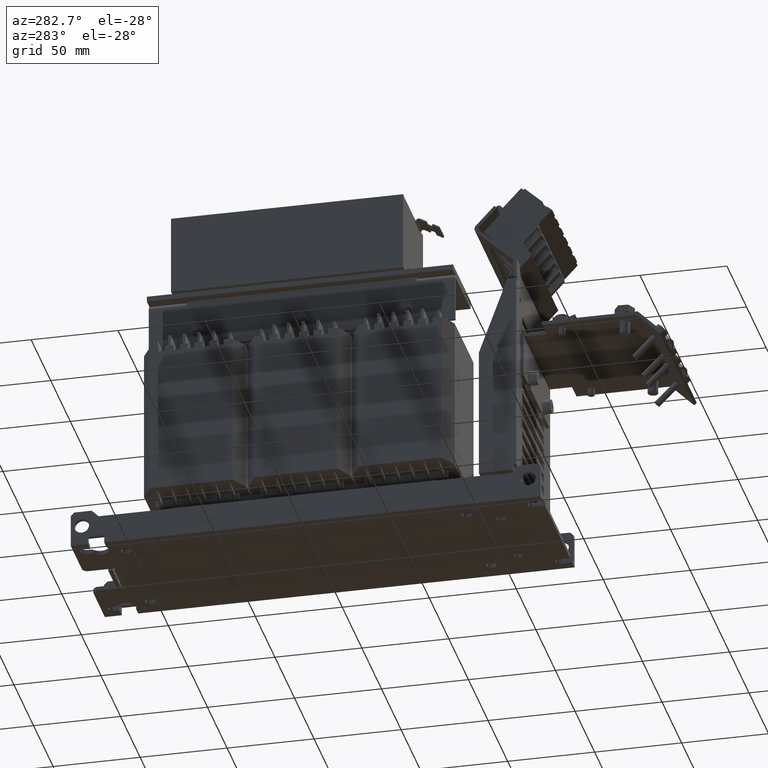
[diagram: clean part render]
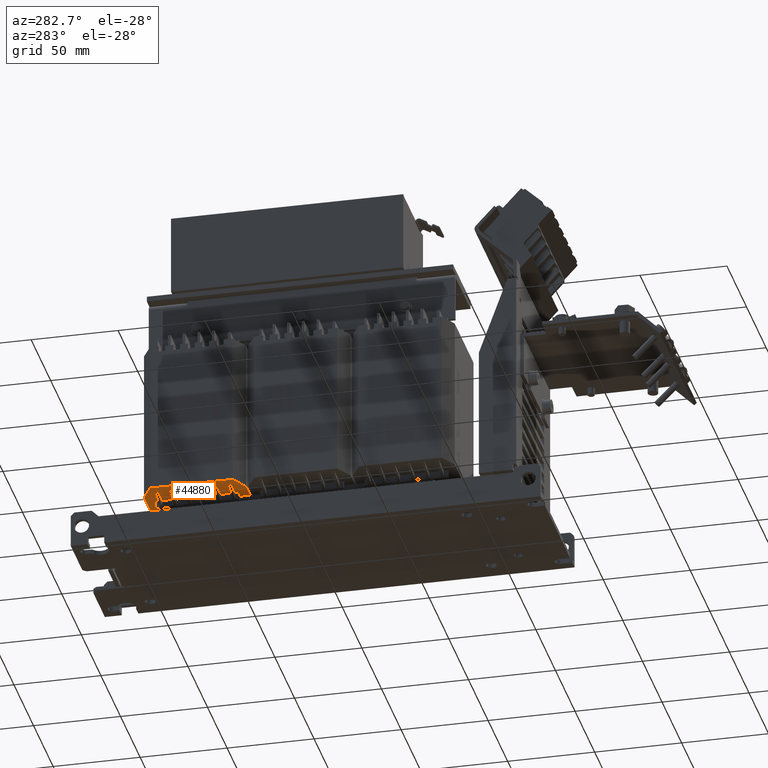
[diagram: same view with one face highlighted and labeled with its STEP entity id]
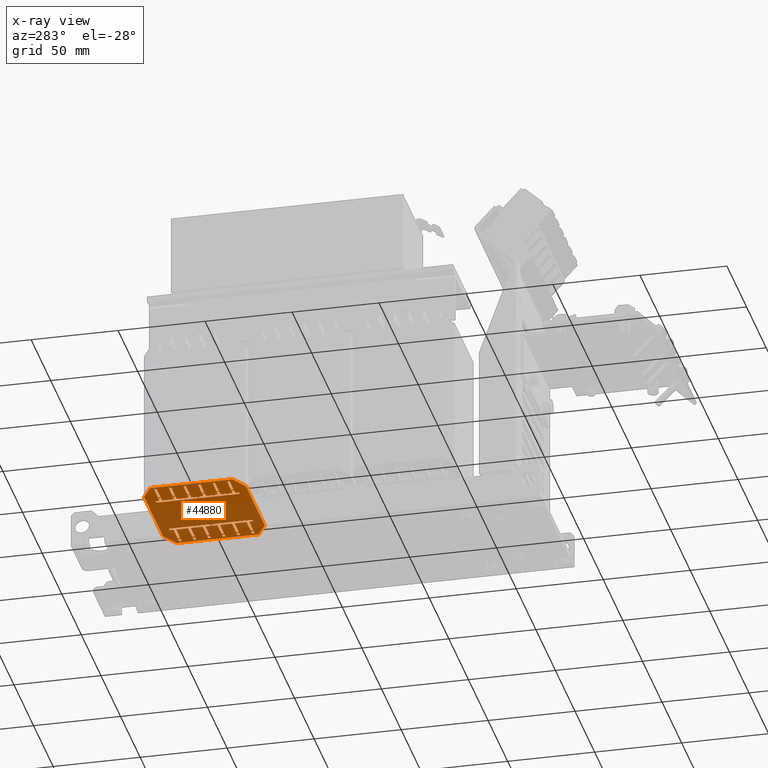
[diagram: x-ray of the same camera — body ghosted, the highlighted face saturated]
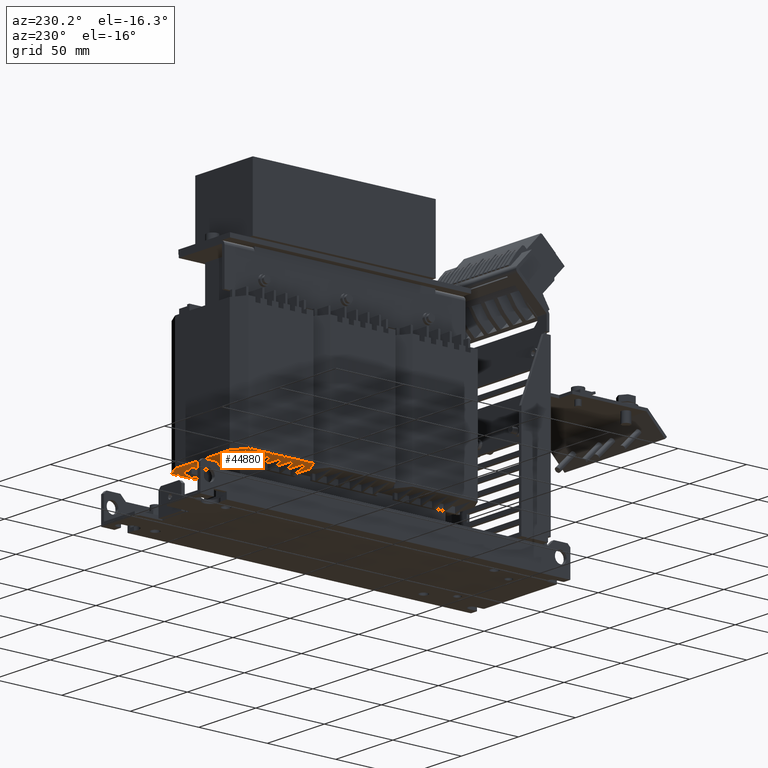
[diagram: same view with one face highlighted and labeled with its STEP entity id]
A machine part, auxiliary view. The second image highlights one B-rep face of the part: STEP entity #44880.
The next image is the same camera in x-ray: the body ghosted, the highlighted face saturated — about 58% of this face is hidden behind the body in this view.
A second angle (auxiliary view) of the same face is appended — the face is thin or edge-on in the first view.
In plain terms, the highlighted planar face has unit normal (-0, -0, 1).
Its self-contained STEP definition (entity closure, byte-faithful):
#35367=DIRECTION('',(8.660254037844E-1,-5.E-1,6.472173081882E-12));
#35368=VECTOR('',#35367,1.122324495309E1);
#35369=CARTESIAN_POINT('',(-3.369999999992E1,4.431162247642E1,3.425E1));
#35370=LINE('',#35369,#35368);
#35371=DIRECTION('',(1.E0,0.E0,-2.590120795558E-12));
#35372=VECTOR('',#35371,4.796076951546E1);
#35373=CARTESIAN_POINT('',(-2.398038475765E1,3.869999999988E1,
3.425000000007E1));
#35374=LINE('',#35373,#35372);
#35375=DIRECTION('',(8.660254037844E-1,5.E-1,4.717855209448E-12));
#35376=VECTOR('',#35375,1.122324495309E1);
#35377=CARTESIAN_POINT('',(2.398038475780E1,3.869999999988E1,3.424999999995E1));
#35378=LINE('',#35377,#35376);
#35379=DIRECTION('',(0.E0,1.E0,1.364791423350E-14));
#35380=VECTOR('',#35379,4.737675504691E1);
#35381=CARTESIAN_POINT('',(3.370000000008E1,4.431162247643E1,3.425E1));
#35382=LINE('',#35381,#35380);
#35383=DIRECTION('',(-8.660254037844E-1,5.E-1,-1.012958713784E-14));
#35384=VECTOR('',#35383,1.122324495309E1);
#35385=CARTESIAN_POINT('',(3.370000000008E1,9.168837752334E1,3.425E1));
#35386=LINE('',#35385,#35384);
#35387=DIRECTION('',(-1.E0,0.E0,-2.029666241443E-14));
#35388=VECTOR('',#35387,4.796076951546E1);
#35389=CARTESIAN_POINT('',(2.398038475780E1,9.729999999988E1,3.425E1));
#35390=LINE('',#35389,#35388);
#35391=DIRECTION('',(-8.660254037844E-1,-5.E-1,-2.405776945237E-14));
#35392=VECTOR('',#35391,1.122324495309E1);
#35393=CARTESIAN_POINT('',(-2.398038475765E1,9.729999999988E1,3.425E1));
#35394=LINE('',#35393,#35392);
#35395=DIRECTION('',(0.E0,-1.E0,-1.364791423350E-14));
#35396=VECTOR('',#35395,4.737675504691E1);
#35397=CARTESIAN_POINT('',(-3.369999999992E1,9.168837752334E1,3.425E1));
#35398=LINE('',#35397,#35396);
#35531=DIRECTION('',(1.681617807966E-13,1.E0,4.736951571734E-14));
#35532=VECTOR('',#35531,1.5E0);
#35533=CARTESIAN_POINT('',(3.189999999994E1,5.464999999988E1,3.425000000005E1));
#35534=LINE('',#35533,#35532);
#35535=DIRECTION('',(1.E0,0.E0,-1.359101956286E-12));
#35536=VECTOR('',#35535,1.409999999987E1);
#35537=CARTESIAN_POINT('',(1.780000000008E1,5.464999999988E1,3.425000000007E1));
#35538=LINE('',#35537,#35536);
#35539=DIRECTION('',(2.887314091519E-10,1.E0,6.105930575965E-11));
#35540=VECTOR('',#35539,1.5E0);
#35541=CARTESIAN_POINT('',(3.189999999951E1,4.624999999988E1,3.424999999996E1));
#35542=LINE('',#35541,#35540);
#35543=DIRECTION('',(1.E0,0.E0,1.024995691201E-12));
#35544=VECTOR('',#35543,1.409999999943E1);
#35545=CARTESIAN_POINT('',(1.780000000008E1,4.624999999988E1,3.424999999995E1));
#35546=LINE('',#35545,#35544);
#35547=DIRECTION('',(1.E0,0.E0,-1.462928543737E-11));
#35548=VECTOR('',#35547,1.8E0);
#35549=CARTESIAN_POINT('',(1.600000000008E1,4.409999999988E1,3.425E1));
#35550=LINE('',#35549,#35548);
#35551=DIRECTION('',(0.E0,1.E0,1.352706881886E-14));
#35552=VECTOR('',#35551,4.78E1);
#35553=CARTESIAN_POINT('',(1.600000000008E1,4.409999999988E1,3.425E1));
#35554=LINE('',#35553,#35552);
#35555=DIRECTION('',(1.E0,1.578983857245E-14,1.973729821556E-14));
#35556=VECTOR('',#35555,1.8E0);
#35557=CARTESIAN_POINT('',(1.600000000007E1,9.189999999988E1,3.425E1));
#35558=LINE('',#35557,#35556);
#35559=DIRECTION('',(0.E0,1.E0,1.321939973507E-14));
#35560=VECTOR('',#35559,2.15E0);
#35561=CARTESIAN_POINT('',(1.780000000007E1,8.974999999988E1,3.425E1));
#35562=LINE('',#35561,#35560);
#35563=DIRECTION('',(-1.E0,0.E0,-2.015724073133E-14));
#35564=VECTOR('',#35563,1.409999999962E1);
#35565=CARTESIAN_POINT('',(3.189999999969E1,8.974999999988E1,3.425E1));
#35566=LINE('',#35565,#35564);
#35567=DIRECTION('',(-1.668993832027E-10,1.E0,-3.527134140313E-11));
#35568=VECTOR('',#35567,1.5E0);
#35569=CARTESIAN_POINT('',(3.189999999994E1,8.824999999988E1,3.425000000005E1));
#35570=LINE('',#35569,#35568);
#35571=DIRECTION('',(1.E0,0.E0,-1.358598025268E-12));
#35572=VECTOR('',#35571,1.409999999987E1);
#35573=CARTESIAN_POINT('',(1.780000000007E1,8.824999999988E1,3.425000000007E1));
#35574=LINE('',#35573,#35572);
#35575=DIRECTION('',(1.515824502955E-13,1.E0,4.736951571734E-14));
#35576=VECTOR('',#35575,1.5E0);
#35577=CARTESIAN_POINT('',(3.189999999994E1,7.984999999988E1,3.425000000005E1));
#35578=LINE('',#35577,#35576);
#35579=DIRECTION('',(1.E0,0.E0,-1.358598025268E-12));
#35580=VECTOR('',#35579,1.409999999987E1);
#35581=CARTESIAN_POINT('',(1.780000000007E1,7.984999999988E1,3.425000000007E1));
#35582=LINE('',#35581,#35580);
#35583=DIRECTION('',(1.515824502955E-13,1.E0,4.736951571734E-14));
#35584=VECTOR('',#35583,1.5E0);
#35585=CARTESIAN_POINT('',(3.189999999994E1,7.144999999988E1,3.425000000005E1));
#35586=LINE('',#35585,#35584);
#35587=DIRECTION('',(1.E0,0.E0,-1.358598025268E-12));
#35588=VECTOR('',#35587,1.409999999987E1);
#35589=CARTESIAN_POINT('',(1.780000000007E1,7.144999999988E1,3.425000000007E1));
#35590=LINE('',#35589,#35588);
#35591=DIRECTION('',(1.515824502955E-13,1.E0,4.736951571734E-14));
#35592=VECTOR('',#35591,1.5E0);
#35593=CARTESIAN_POINT('',(3.189999999994E1,6.304999999988E1,3.425000000005E1));
#35594=LINE('',#35593,#35592);
#35595=DIRECTION('',(1.E0,0.E0,-1.358598025268E-12));
#35596=VECTOR('',#35595,1.409999999987E1);
#35597=CARTESIAN_POINT('',(1.780000000007E1,6.304999999988E1,3.425000000007E1));
#35598=LINE('',#35597,#35596);
#35659=DIRECTION('',(-1.563194018672E-13,1.E0,4.263256414561E-14));
#35660=VECTOR('',#35659,1.5E0);
#35661=CARTESIAN_POINT('',(-3.189999999979E1,7.144999999988E1,
3.425000000005E1));
#35662=LINE('',#35661,#35660);
#35663=DIRECTION('',(-1.E0,0.E0,-1.401432161821E-12));
#35664=VECTOR('',#35663,1.409999999987E1);
#35665=CARTESIAN_POINT('',(-1.779999999993E1,7.294999999988E1,
3.425000000007E1));
#35666=LINE('',#35665,#35664);
#35667=DIRECTION('',(-1.610563534389E-13,1.E0,4.263256414560E-14));
#35668=VECTOR('',#35667,1.5E0);
#35669=CARTESIAN_POINT('',(-3.189999999979E1,7.984999999988E1,
3.425000000005E1));
#35670=LINE('',#35669,#35668);
#35671=DIRECTION('',(-1.E0,0.E0,-1.401432161821E-12));
#35672=VECTOR('',#35671,1.409999999987E1);
#35673=CARTESIAN_POINT('',(-1.779999999993E1,8.134999999988E1,
3.425000000007E1));
#35674=LINE('',#35673,#35672);
#35675=DIRECTION('',(1.670485971772E-10,1.E0,-3.530923701570E-11));
#35676=VECTOR('',#35675,1.5E0);
#35677=CARTESIAN_POINT('',(-3.189999999979E1,8.824999999988E1,
3.425000000005E1));
#35678=LINE('',#35677,#35676);
#35679=DIRECTION('',(-1.E0,0.E0,-2.015724073133E-14));
#35680=VECTOR('',#35679,1.409999999962E1);
#35681=CARTESIAN_POINT('',(-1.779999999993E1,8.974999999988E1,3.425E1));
#35682=LINE('',#35681,#35680);
#35683=DIRECTION('',(0.E0,-1.E0,0.E0));
#35684=VECTOR('',#35683,2.342522711888E0);
#35685=CARTESIAN_POINT('',(-1.779999999993E1,9.209252271176E1,3.425E1));
#35686=LINE('',#35685,#35684);
#35687=DIRECTION('',(-1.E0,-1.578983857245E-14,-2.763221750178E-14));
#35688=VECTOR('',#35687,1.8E0);
#35689=CARTESIAN_POINT('',(-1.599999999993E1,9.209252271176E1,3.425E1));
#35690=LINE('',#35689,#35688);
#35691=DIRECTION('',(0.E0,-1.E0,-1.362085758283E-14));
#35692=VECTOR('',#35691,4.799252271189E1);
#35693=CARTESIAN_POINT('',(-1.599999999993E1,9.209252271176E1,3.425E1));
#35694=LINE('',#35693,#35692);
#35695=DIRECTION('',(-1.E0,0.E0,2.010835942201E-11));
#35696=VECTOR('',#35695,1.8E0);
#35697=CARTESIAN_POINT('',(-1.599999999992E1,4.409999999988E1,3.425E1));
#35698=LINE('',#35697,#35696);
#35699=DIRECTION('',(-1.515824502955E-13,1.E0,4.263256414560E-14));
#35700=VECTOR('',#35699,1.5E0);
#35701=CARTESIAN_POINT('',(-3.189999999979E1,4.624999999988E1,
3.425000000005E1));
#35702=LINE('',#35701,#35700);
#35703=DIRECTION('',(-1.E0,0.E0,-1.401432161821E-12));
#35704=VECTOR('',#35703,1.409999999987E1);
#35705=CARTESIAN_POINT('',(-1.779999999992E1,4.774999999988E1,
3.425000000007E1));
#35706=LINE('',#35705,#35704);
#35707=DIRECTION('',(-1.610563534389E-13,1.E0,4.263256414560E-14));
#35708=VECTOR('',#35707,1.5E0);
#35709=CARTESIAN_POINT('',(-3.189999999979E1,5.464999999988E1,
3.425000000005E1));
#35710=LINE('',#35709,#35708);
#35711=DIRECTION('',(-1.E0,0.E0,-1.401432161821E-12));
#35712=VECTOR('',#35711,1.409999999987E1);
#35713=CARTESIAN_POINT('',(-1.779999999992E1,5.614999999988E1,
3.425000000007E1));
#35714=LINE('',#35713,#35712);
#35715=DIRECTION('',(-1.681617807966E-13,1.E0,4.263256414561E-14));
#35716=VECTOR('',#35715,1.5E0);
#35717=CARTESIAN_POINT('',(-3.189999999979E1,6.304999999988E1,
3.425000000005E1));
#35718=LINE('',#35717,#35716);
#35719=DIRECTION('',(-1.E0,0.E0,-1.401432161821E-12));
#35720=VECTOR('',#35719,1.409999999987E1);
#35721=CARTESIAN_POINT('',(-1.779999999993E1,6.454999999988E1,
3.425000000007E1));
#35722=LINE('',#35721,#35720);
#35923=DIRECTION('',(-1.E0,0.E0,-1.399920368766E-12));
#35924=VECTOR('',#35923,1.409999999987E1);
#35925=CARTESIAN_POINT('',(-1.779999999993E1,8.824999999988E1,
3.425000000007E1));
#35926=LINE('',#35925,#35924);
#35931=DIRECTION('',(0.E0,1.E0,1.685473466222E-11));
#35932=VECTOR('',#35931,2.15E0);
#35933=CARTESIAN_POINT('',(-1.779999999992E1,4.409999999988E1,
3.425000000004E1));
#35934=LINE('',#35933,#35932);
#35939=DIRECTION('',(0.E0,1.E0,0.E0));
#35940=VECTOR('',#35939,6.9E0);
#35941=CARTESIAN_POINT('',(-1.779999999992E1,4.774999999988E1,
3.425000000007E1));
#35942=LINE('',#35941,#35940);
#35951=DIRECTION('',(0.E0,1.E0,0.E0));
#35952=VECTOR('',#35951,6.9E0);
#35953=CARTESIAN_POINT('',(-1.779999999992E1,5.614999999988E1,
3.425000000007E1));
#35954=LINE('',#35953,#35952);
#35963=DIRECTION('',(0.E0,1.E0,0.E0));
#35964=VECTOR('',#35963,6.9E0);
#35965=CARTESIAN_POINT('',(-1.779999999993E1,6.454999999988E1,
3.425000000007E1));
#35966=LINE('',#35965,#35964);
#35975=DIRECTION('',(0.E0,1.E0,0.E0));
#35976=VECTOR('',#35975,6.9E0);
#35977=CARTESIAN_POINT('',(-1.779999999993E1,7.294999999988E1,
3.425000000007E1));
#35978=LINE('',#35977,#35976);
#35987=DIRECTION('',(0.E0,1.E0,0.E0));
#35988=VECTOR('',#35987,6.9E0);
#35989=CARTESIAN_POINT('',(-1.779999999993E1,8.134999999988E1,
3.425000000007E1));
#35990=LINE('',#35989,#35988);
#36667=DIRECTION('',(0.E0,-1.E0,1.225768840434E-11));
#36668=VECTOR('',#36667,2.15E0);
#36669=CARTESIAN_POINT('',(1.780000000008E1,4.624999999988E1,3.424999999995E1));
#36670=LINE('',#36669,#36668);
#36679=DIRECTION('',(0.E0,1.E0,0.E0));
#36680=VECTOR('',#36679,6.9E0);
#36681=CARTESIAN_POINT('',(1.780000000008E1,4.774999999988E1,3.425000000007E1));
#36682=LINE('',#36681,#36680);
#36691=DIRECTION('',(0.E0,1.E0,0.E0));
#36692=VECTOR('',#36691,6.9E0);
#36693=CARTESIAN_POINT('',(1.780000000008E1,5.614999999988E1,3.425000000007E1));
#36694=LINE('',#36693,#36692);
#36703=DIRECTION('',(0.E0,1.E0,0.E0));
#36704=VECTOR('',#36703,6.9E0);
#36705=CARTESIAN_POINT('',(1.780000000007E1,6.454999999988E1,3.425000000007E1));
#36706=LINE('',#36705,#36704);
#36715=DIRECTION('',(0.E0,1.E0,0.E0));
#36716=VECTOR('',#36715,6.9E0);
#36717=CARTESIAN_POINT('',(1.780000000007E1,7.294999999988E1,3.425000000007E1));
#36718=LINE('',#36717,#36716);
#36727=DIRECTION('',(0.E0,1.E0,0.E0));
#36728=VECTOR('',#36727,6.9E0);
#36729=CARTESIAN_POINT('',(1.780000000007E1,8.134999999988E1,3.425000000007E1));
#36730=LINE('',#36729,#36728);
#36911=DIRECTION('',(-1.E0,0.E0,1.359605887304E-12));
#36912=VECTOR('',#36911,1.409999999987E1);
#36913=CARTESIAN_POINT('',(3.189999999994E1,4.774999999988E1,3.425000000005E1));
#36914=LINE('',#36913,#36912);
#36915=DIRECTION('',(-1.E0,0.E0,1.359605887304E-12));
#36916=VECTOR('',#36915,1.409999999987E1);
#36917=CARTESIAN_POINT('',(3.189999999994E1,5.614999999988E1,3.425000000005E1));
#36918=LINE('',#36917,#36916);
#36919=DIRECTION('',(-1.E0,0.E0,1.359605887304E-12));
#36920=VECTOR('',#36919,1.409999999987E1);
#36921=CARTESIAN_POINT('',(3.189999999994E1,6.454999999988E1,3.425000000005E1));
#36922=LINE('',#36921,#36920);
#36923=DIRECTION('',(-1.E0,0.E0,1.359605887304E-12));
#36924=VECTOR('',#36923,1.409999999987E1);
#36925=CARTESIAN_POINT('',(3.189999999994E1,7.294999999988E1,3.425000000005E1));
#36926=LINE('',#36925,#36924);
#36927=DIRECTION('',(-1.E0,0.E0,1.359605887304E-12));
#36928=VECTOR('',#36927,1.409999999987E1);
#36929=CARTESIAN_POINT('',(3.189999999994E1,8.134999999988E1,3.425000000005E1));
#36930=LINE('',#36929,#36928);
#37067=DIRECTION('',(-1.E0,0.E0,-1.399920368766E-12));
#37068=VECTOR('',#37067,1.409999999987E1);
#37069=CARTESIAN_POINT('',(-1.779999999992E1,4.624999999988E1,
3.425000000007E1));
#37070=LINE('',#37069,#37068);
#37071=DIRECTION('',(-1.E0,0.E0,-1.399920368766E-12));
#37072=VECTOR('',#37071,1.409999999987E1);
#37073=CARTESIAN_POINT('',(-1.779999999992E1,5.464999999988E1,
3.425000000007E1));
#37074=LINE('',#37073,#37072);
#37075=DIRECTION('',(-1.E0,0.E0,-1.399920368766E-12));
#37076=VECTOR('',#37075,1.409999999987E1);
#37077=CARTESIAN_POINT('',(-1.779999999993E1,6.304999999988E1,
3.425000000007E1));
#37078=LINE('',#37077,#37076);
#37079=DIRECTION('',(-1.E0,0.E0,-1.399920368766E-12));
#37080=VECTOR('',#37079,1.409999999987E1);
#37081=CARTESIAN_POINT('',(-1.779999999993E1,7.144999999988E1,
3.425000000007E1));
#37082=LINE('',#37081,#37080);
#37083=DIRECTION('',(-1.E0,0.E0,-1.399920368766E-12));
#37084=VECTOR('',#37083,1.409999999987E1);
#37085=CARTESIAN_POINT('',(-1.779999999993E1,7.984999999988E1,
3.425000000007E1));
#37086=LINE('',#37085,#37084);
#39329=CARTESIAN_POINT('',(-2.398038475765E1,9.729999999988E1,3.425E1));
#39330=CARTESIAN_POINT('',(-3.369999999992E1,9.168837752334E1,3.425E1));
#39331=VERTEX_POINT('',#39329);
#39332=VERTEX_POINT('',#39330);
#39333=CARTESIAN_POINT('',(-3.369999999992E1,4.431162247642E1,3.425E1));
#39334=VERTEX_POINT('',#39333);
#39335=CARTESIAN_POINT('',(3.370000000008E1,4.431162247643E1,3.425E1));
#39336=CARTESIAN_POINT('',(3.370000000008E1,9.168837752334E1,3.425E1));
#39337=VERTEX_POINT('',#39335);
#39338=VERTEX_POINT('',#39336);
#39339=CARTESIAN_POINT('',(2.398038475780E1,9.729999999988E1,3.425E1));
#39340=VERTEX_POINT('',#39339);
#39385=CARTESIAN_POINT('',(1.600000000008E1,4.409999999988E1,3.425E1));
#39386=CARTESIAN_POINT('',(1.600000000007E1,9.189999999988E1,3.425E1));
#39387=VERTEX_POINT('',#39385);
#39388=VERTEX_POINT('',#39386);
#39391=CARTESIAN_POINT('',(1.780000000007E1,9.189999999988E1,3.425E1));
#39392=VERTEX_POINT('',#39391);
#39409=CARTESIAN_POINT('',(-1.599999999993E1,9.209252271176E1,3.425E1));
#39410=CARTESIAN_POINT('',(-1.599999999992E1,4.409999999988E1,3.425E1));
#39411=VERTEX_POINT('',#39409);
#39412=VERTEX_POINT('',#39410);
#39421=CARTESIAN_POINT('',(-1.779999999993E1,9.209252271176E1,3.425E1));
#39422=VERTEX_POINT('',#39421);
#39425=CARTESIAN_POINT('',(3.189999999969E1,8.974999999988E1,3.425E1));
#39426=CARTESIAN_POINT('',(1.780000000007E1,8.974999999988E1,3.425E1));
#39427=VERTEX_POINT('',#39425);
#39428=VERTEX_POINT('',#39426);
#39429=CARTESIAN_POINT('',(-1.779999999993E1,8.974999999988E1,3.425E1));
#39430=CARTESIAN_POINT('',(-3.189999999954E1,8.974999999988E1,3.425E1));
#39431=VERTEX_POINT('',#39429);
#39432=VERTEX_POINT('',#39430);
#39489=CARTESIAN_POINT('',(1.780000000008E1,4.774999999988E1,3.425000000007E1));
#39490=CARTESIAN_POINT('',(1.780000000008E1,5.464999999988E1,3.425000000007E1));
#39491=VERTEX_POINT('',#39489);
#39492=VERTEX_POINT('',#39490);
#39493=CARTESIAN_POINT('',(1.780000000008E1,5.614999999988E1,3.425000000007E1));
#39494=CARTESIAN_POINT('',(1.780000000007E1,6.304999999988E1,3.425000000007E1));
#39495=VERTEX_POINT('',#39493);
#39496=VERTEX_POINT('',#39494);
#39497=CARTESIAN_POINT('',(1.780000000007E1,6.454999999988E1,3.425000000007E1));
#39498=CARTESIAN_POINT('',(1.780000000007E1,7.144999999988E1,3.425000000007E1));
#39499=VERTEX_POINT('',#39497);
#39500=VERTEX_POINT('',#39498);
#39501=CARTESIAN_POINT('',(1.780000000007E1,7.294999999988E1,3.425000000007E1));
#39502=CARTESIAN_POINT('',(1.780000000007E1,7.984999999988E1,3.425000000007E1));
#39503=VERTEX_POINT('',#39501);
#39504=VERTEX_POINT('',#39502);
#39505=CARTESIAN_POINT('',(1.780000000007E1,8.134999999988E1,3.425000000007E1));
#39506=CARTESIAN_POINT('',(1.780000000007E1,8.824999999988E1,3.425000000007E1));
#39507=VERTEX_POINT('',#39505);
#39508=VERTEX_POINT('',#39506);
#39597=CARTESIAN_POINT('',(3.189999999994E1,4.774999999988E1,3.425000000005E1));
#39599=VERTEX_POINT('',#39597);
#39601=CARTESIAN_POINT('',(3.189999999994E1,5.464999999988E1,3.425000000005E1));
#39603=VERTEX_POINT('',#39601);
#39605=CARTESIAN_POINT('',(3.189999999994E1,5.614999999988E1,3.425000000005E1));
#39607=VERTEX_POINT('',#39605);
#39609=CARTESIAN_POINT('',(3.189999999994E1,6.304999999988E1,3.425000000005E1));
#39611=VERTEX_POINT('',#39609);
#39613=CARTESIAN_POINT('',(3.189999999994E1,6.454999999988E1,3.425000000005E1));
#39615=VERTEX_POINT('',#39613);
#39617=CARTESIAN_POINT('',(3.189999999994E1,7.144999999988E1,3.425000000005E1));
#39619=VERTEX_POINT('',#39617);
#39621=CARTESIAN_POINT('',(3.189999999994E1,7.294999999988E1,3.425000000005E1));
#39623=VERTEX_POINT('',#39621);
#39625=CARTESIAN_POINT('',(3.189999999994E1,7.984999999988E1,3.425000000005E1));
#39627=VERTEX_POINT('',#39625);
#39629=CARTESIAN_POINT('',(3.189999999994E1,8.134999999988E1,3.425000000005E1));
#39631=VERTEX_POINT('',#39629);
#39633=CARTESIAN_POINT('',(3.189999999994E1,8.824999999988E1,3.425000000005E1));
#39635=VERTEX_POINT('',#39633);
#39641=CARTESIAN_POINT('',(3.189999999951E1,4.624999999988E1,3.424999999996E1));
#39643=VERTEX_POINT('',#39641);
#39659=CARTESIAN_POINT('',(1.780000000008E1,4.624999999988E1,3.424999999995E1));
#39660=VERTEX_POINT('',#39659);
#39667=CARTESIAN_POINT('',(1.780000000008E1,4.409999999988E1,3.424999999997E1));
#39668=VERTEX_POINT('',#39667);
#39669=CARTESIAN_POINT('',(2.398038475780E1,3.869999999988E1,3.424999999995E1));
#39670=VERTEX_POINT('',#39669);
#39677=CARTESIAN_POINT('',(-1.779999999993E1,8.134999999988E1,
3.425000000007E1));
#39678=CARTESIAN_POINT('',(-1.779999999993E1,8.824999999988E1,
3.425000000007E1));
#39679=VERTEX_POINT('',#39677);
#39680=VERTEX_POINT('',#39678);
#39681=CARTESIAN_POINT('',(-1.779999999993E1,7.294999999988E1,
3.425000000007E1));
#39682=CARTESIAN_POINT('',(-1.779999999993E1,7.984999999988E1,
3.425000000007E1));
#39683=VERTEX_POINT('',#39681);
#39684=VERTEX_POINT('',#39682);
#39685=CARTESIAN_POINT('',(-1.779999999993E1,6.454999999988E1,
3.425000000007E1));
#39686=CARTESIAN_POINT('',(-1.779999999993E1,7.144999999988E1,
3.425000000007E1));
#39687=VERTEX_POINT('',#39685);
#39688=VERTEX_POINT('',#39686);
#39689=CARTESIAN_POINT('',(-1.779999999992E1,5.614999999988E1,
3.425000000007E1));
#39690=CARTESIAN_POINT('',(-1.779999999993E1,6.304999999988E1,
3.425000000007E1));
#39691=VERTEX_POINT('',#39689);
#39692=VERTEX_POINT('',#39690);
#39693=CARTESIAN_POINT('',(-1.779999999992E1,4.774999999988E1,
3.425000000007E1));
#39694=CARTESIAN_POINT('',(-1.779999999992E1,5.464999999988E1,
3.425000000007E1));
#39695=VERTEX_POINT('',#39693);
#39696=VERTEX_POINT('',#39694);
#39761=CARTESIAN_POINT('',(-1.779999999992E1,4.409999999988E1,
3.425000000004E1));
#39762=VERTEX_POINT('',#39761);
#39821=CARTESIAN_POINT('',(-3.189999999979E1,8.824999999988E1,
3.425000000005E1));
#39822=VERTEX_POINT('',#39821);
#39823=CARTESIAN_POINT('',(-3.189999999979E1,8.134999999988E1,
3.425000000005E1));
#39824=VERTEX_POINT('',#39823);
#39825=CARTESIAN_POINT('',(-3.189999999979E1,7.984999999988E1,
3.425000000005E1));
#39826=VERTEX_POINT('',#39825);
#39827=CARTESIAN_POINT('',(-3.189999999979E1,7.294999999988E1,
3.425000000005E1));
#39828=VERTEX_POINT('',#39827);
#39829=CARTESIAN_POINT('',(-3.189999999979E1,7.144999999988E1,
3.425000000005E1));
#39830=VERTEX_POINT('',#39829);
#39831=CARTESIAN_POINT('',(-3.189999999979E1,6.454999999988E1,
3.425000000005E1));
#39832=VERTEX_POINT('',#39831);
#39833=CARTESIAN_POINT('',(-3.189999999979E1,6.304999999988E1,
3.425000000005E1));
#39834=VERTEX_POINT('',#39833);
#39835=CARTESIAN_POINT('',(-3.189999999979E1,5.614999999988E1,
3.425000000005E1));
#39836=VERTEX_POINT('',#39835);
#39837=CARTESIAN_POINT('',(-3.189999999979E1,5.464999999988E1,
3.425000000005E1));
#39838=VERTEX_POINT('',#39837);
#39839=CARTESIAN_POINT('',(-3.189999999979E1,4.774999999988E1,
3.425000000005E1));
#39840=VERTEX_POINT('',#39839);
#39841=CARTESIAN_POINT('',(-3.189999999979E1,4.624999999988E1,
3.425000000005E1));
#39842=VERTEX_POINT('',#39841);
#39889=CARTESIAN_POINT('',(-2.398038475765E1,3.869999999988E1,
3.425000000007E1));
#39890=VERTEX_POINT('',#39889);
#39897=CARTESIAN_POINT('',(-1.779999999992E1,4.624999999988E1,
3.425000000007E1));
#39898=VERTEX_POINT('',#39897);
#44741=CARTESIAN_POINT('',(-6.946532754844E-13,-4.612563756861E-13,3.425E1));
#44742=DIRECTION('',(-2.028184745940E-14,-1.351811021644E-14,1.E0));
#44743=DIRECTION('',(1.E0,0.E0,2.028184745940E-14));
#44744=AXIS2_PLACEMENT_3D('',#44741,#44742,#44743);
#44745=PLANE('',#44744);
#44747=ORIENTED_EDGE('',*,*,#44746,.T.);
#44749=ORIENTED_EDGE('',*,*,#44748,.T.);
#44751=ORIENTED_EDGE('',*,*,#44750,.T.);
#44753=ORIENTED_EDGE('',*,*,#44752,.T.);
#44755=ORIENTED_EDGE('',*,*,#44754,.T.);
#44757=ORIENTED_EDGE('',*,*,#44756,.T.);
#44759=ORIENTED_EDGE('',*,*,#44758,.T.);
#44761=ORIENTED_EDGE('',*,*,#44760,.T.);
#44762=EDGE_LOOP('',(#44747,#44749,#44751,#44753,#44755,#44757,#44759,#44761));
#44763=FACE_OUTER_BOUND('',#44762,.F.);
#44765=ORIENTED_EDGE('',*,*,#44764,.F.);
#44767=ORIENTED_EDGE('',*,*,#44766,.F.);
#44769=ORIENTED_EDGE('',*,*,#44768,.F.);
#44771=ORIENTED_EDGE('',*,*,#44770,.F.);
#44773=ORIENTED_EDGE('',*,*,#44772,.F.);
#44775=ORIENTED_EDGE('',*,*,#44774,.F.);
#44777=ORIENTED_EDGE('',*,*,#44776,.T.);
#44779=ORIENTED_EDGE('',*,*,#44778,.F.);
#44781=ORIENTED_EDGE('',*,*,#44780,.T.);
#44783=ORIENTED_EDGE('',*,*,#44782,.T.);
#44785=ORIENTED_EDGE('',*,*,#44784,.F.);
#44787=ORIENTED_EDGE('',*,*,#44786,.F.);
#44789=ORIENTED_EDGE('',*,*,#44788,.F.);
#44791=ORIENTED_EDGE('',*,*,#44790,.F.);
#44793=ORIENTED_EDGE('',*,*,#44792,.F.);
#44795=ORIENTED_EDGE('',*,*,#44794,.F.);
#44797=ORIENTED_EDGE('',*,*,#44796,.F.);
#44799=ORIENTED_EDGE('',*,*,#44798,.F.);
#44801=ORIENTED_EDGE('',*,*,#44800,.F.);
#44803=ORIENTED_EDGE('',*,*,#44802,.F.);
#44805=ORIENTED_EDGE('',*,*,#44804,.F.);
#44807=ORIENTED_EDGE('',*,*,#44806,.F.);
#44809=ORIENTED_EDGE('',*,*,#44808,.F.);
#44811=ORIENTED_EDGE('',*,*,#44810,.F.);
#44813=ORIENTED_EDGE('',*,*,#44812,.F.);
#44815=ORIENTED_EDGE('',*,*,#44814,.F.);
#44817=ORIENTED_EDGE('',*,*,#44816,.F.);
#44819=ORIENTED_EDGE('',*,*,#44818,.F.);
#44820=EDGE_LOOP('',(#44765,#44767,#44769,#44771,#44773,#44775,#44777,#44779,
#44781,#44783,#44785,#44787,#44789,#44791,#44793,#44795,#44797,#44799,#44801,
#44803,#44805,#44807,#44809,#44811,#44813,#44815,#44817,#44819));
#44821=FACE_BOUND('',#44820,.F.);
#44823=ORIENTED_EDGE('',*,*,#44822,.T.);
#44825=ORIENTED_EDGE('',*,*,#44824,.F.);
#44827=ORIENTED_EDGE('',*,*,#44826,.T.);
#44829=ORIENTED_EDGE('',*,*,#44828,.T.);
#44831=ORIENTED_EDGE('',*,*,#44830,.T.);
#44833=ORIENTED_EDGE('',*,*,#44832,.F.);
#44835=ORIENTED_EDGE('',*,*,#44834,.T.);
#44837=ORIENTED_EDGE('',*,*,#44836,.T.);
#44839=ORIENTED_EDGE('',*,*,#44838,.T.);
#44841=ORIENTED_EDGE('',*,*,#44840,.F.);
#44843=ORIENTED_EDGE('',*,*,#44842,.F.);
#44845=ORIENTED_EDGE('',*,*,#44844,.F.);
#44847=ORIENTED_EDGE('',*,*,#44846,.T.);
#44849=ORIENTED_EDGE('',*,*,#44848,.T.);
#44851=ORIENTED_EDGE('',*,*,#44850,.T.);
#44853=ORIENTED_EDGE('',*,*,#44852,.T.);
#44855=ORIENTED_EDGE('',*,*,#44854,.T.);
#44857=ORIENTED_EDGE('',*,*,#44856,.F.);
#44859=ORIENTED_EDGE('',*,*,#44858,.T.);
#44861=ORIENTED_EDGE('',*,*,#44860,.T.);
#44863=ORIENTED_EDGE('',*,*,#44862,.T.);
#44865=ORIENTED_EDGE('',*,*,#44864,.F.);
#44867=ORIENTED_EDGE('',*,*,#44866,.T.);
#44869=ORIENTED_EDGE('',*,*,#44868,.T.);
#44871=ORIENTED_EDGE('',*,*,#44870,.T.);
#44873=ORIENTED_EDGE('',*,*,#44872,.F.);
#44875=ORIENTED_EDGE('',*,*,#44874,.T.);
#44877=ORIENTED_EDGE('',*,*,#44876,.T.);
#44878=EDGE_LOOP('',(#44823,#44825,#44827,#44829,#44831,#44833,#44835,#44837,
#44839,#44841,#44843,#44845,#44847,#44849,#44851,#44853,#44855,#44857,#44859,
#44861,#44863,#44865,#44867,#44869,#44871,#44873,#44875,#44877));
#44879=FACE_BOUND('',#44878,.F.);
#44880=ADVANCED_FACE('',(#44763,#44821,#44879),#44745,.F.);
#44746=EDGE_CURVE('',#39334,#39890,#35370,.T.);
#44748=EDGE_CURVE('',#39890,#39670,#35374,.T.);
#44750=EDGE_CURVE('',#39670,#39337,#35378,.T.);
#44752=EDGE_CURVE('',#39337,#39338,#35382,.T.);
#44754=EDGE_CURVE('',#39338,#39340,#35386,.T.);
#44756=EDGE_CURVE('',#39340,#39331,#35390,.T.);
#44758=EDGE_CURVE('',#39331,#39332,#35394,.T.);
#44760=EDGE_CURVE('',#39332,#39334,#35398,.T.);
#44764=EDGE_CURVE('',#39603,#39607,#35534,.T.);
#44766=EDGE_CURVE('',#39492,#39603,#35538,.T.);
#44768=EDGE_CURVE('',#39491,#39492,#36682,.T.);
#44770=EDGE_CURVE('',#39599,#39491,#36914,.T.);
#44772=EDGE_CURVE('',#39643,#39599,#35542,.T.);
#44774=EDGE_CURVE('',#39660,#39643,#35546,.T.);
#44776=EDGE_CURVE('',#39660,#39668,#36670,.T.);
#44778=EDGE_CURVE('',#39387,#39668,#35550,.T.);
#44780=EDGE_CURVE('',#39387,#39388,#35554,.T.);
#44782=EDGE_CURVE('',#39388,#39392,#35558,.T.);
#44784=EDGE_CURVE('',#39428,#39392,#35562,.T.);
#44786=EDGE_CURVE('',#39427,#39428,#35566,.T.);
#44788=EDGE_CURVE('',#39635,#39427,#35570,.T.);
#44790=EDGE_CURVE('',#39508,#39635,#35574,.T.);
#44792=EDGE_CURVE('',#39507,#39508,#36730,.T.);
#44794=EDGE_CURVE('',#39631,#39507,#36930,.T.);
#44796=EDGE_CURVE('',#39627,#39631,#35578,.T.);
#44798=EDGE_CURVE('',#39504,#39627,#35582,.T.);
#44800=EDGE_CURVE('',#39503,#39504,#36718,.T.);
#44802=EDGE_CURVE('',#39623,#39503,#36926,.T.);
#44804=EDGE_CURVE('',#39619,#39623,#35586,.T.);
#44806=EDGE_CURVE('',#39500,#39619,#35590,.T.);
#44808=EDGE_CURVE('',#39499,#39500,#36706,.T.);
#44810=EDGE_CURVE('',#39615,#39499,#36922,.T.);
#44812=EDGE_CURVE('',#39611,#39615,#35594,.T.);
#44814=EDGE_CURVE('',#39496,#39611,#35598,.T.);
#44816=EDGE_CURVE('',#39495,#39496,#36694,.T.);
#44818=EDGE_CURVE('',#39607,#39495,#36918,.T.);
#44822=EDGE_CURVE('',#39830,#39828,#35662,.T.);
#44824=EDGE_CURVE('',#39683,#39828,#35666,.T.);
#44826=EDGE_CURVE('',#39683,#39684,#35978,.T.);
#44828=EDGE_CURVE('',#39684,#39826,#37086,.T.);
#44830=EDGE_CURVE('',#39826,#39824,#35670,.T.);
#44832=EDGE_CURVE('',#39679,#39824,#35674,.T.);
#44834=EDGE_CURVE('',#39679,#39680,#35990,.T.);
#44836=EDGE_CURVE('',#39680,#39822,#35926,.T.);
#44838=EDGE_CURVE('',#39822,#39432,#35678,.T.);
#44840=EDGE_CURVE('',#39431,#39432,#35682,.T.);
#44842=EDGE_CURVE('',#39422,#39431,#35686,.T.);
#44844=EDGE_CURVE('',#39411,#39422,#35690,.T.);
#44846=EDGE_CURVE('',#39411,#39412,#35694,.T.);
#44848=EDGE_CURVE('',#39412,#39762,#35698,.T.);
#44850=EDGE_CURVE('',#39762,#39898,#35934,.T.);
#44852=EDGE_CURVE('',#39898,#39842,#37070,.T.);
#44854=EDGE_CURVE('',#39842,#39840,#35702,.T.);
#44856=EDGE_CURVE('',#39695,#39840,#35706,.T.);
#44858=EDGE_CURVE('',#39695,#39696,#35942,.T.);
#44860=EDGE_CURVE('',#39696,#39838,#37074,.T.);
#44862=EDGE_CURVE('',#39838,#39836,#35710,.T.);
#44864=EDGE_CURVE('',#39691,#39836,#35714,.T.);
#44866=EDGE_CURVE('',#39691,#39692,#35954,.T.);
#44868=EDGE_CURVE('',#39692,#39834,#37078,.T.);
#44870=EDGE_CURVE('',#39834,#39832,#35718,.T.);
#44872=EDGE_CURVE('',#39687,#39832,#35722,.T.);
#44874=EDGE_CURVE('',#39687,#39688,#35966,.T.);
#44876=EDGE_CURVE('',#39688,#39830,#37082,.T.);